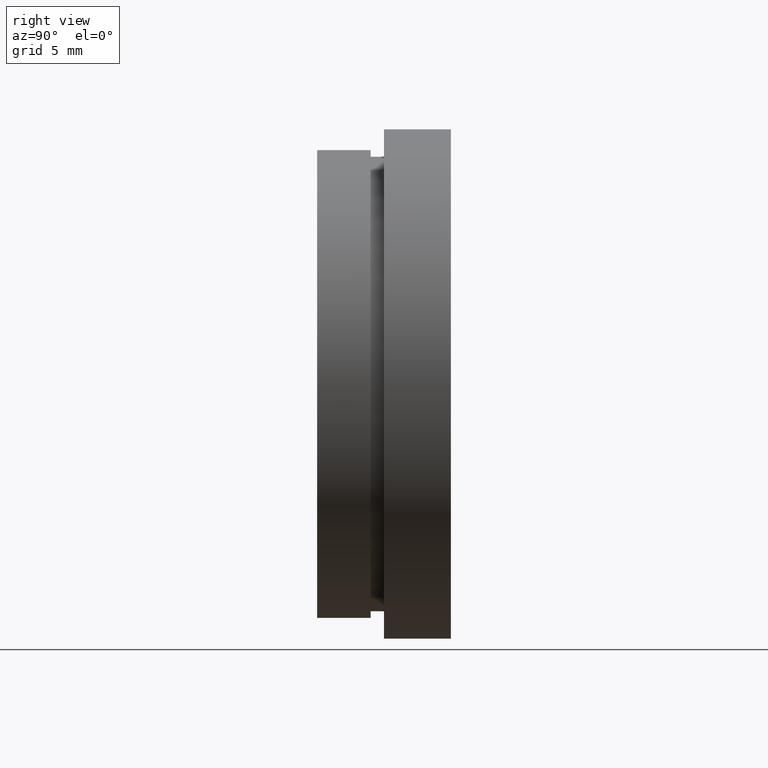
[diagram: clean part render]
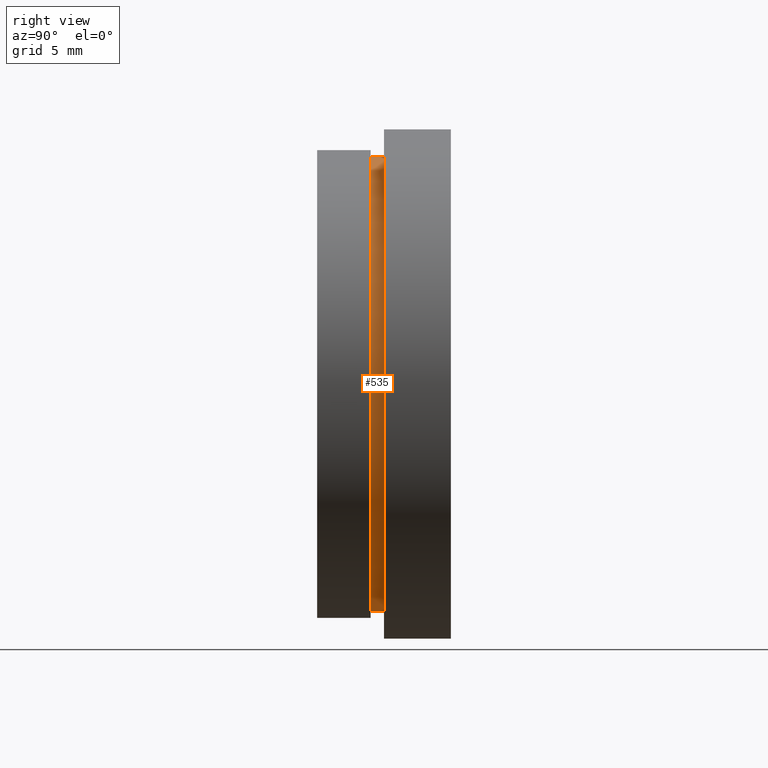
[diagram: same view with one face highlighted and labeled with its STEP entity id]
A machine part, right view. The second image highlights one B-rep face of the part: STEP entity #535.
In plain terms, the highlighted cylindrical surface (partial cylindrical patch) has radius 17 mm, axis along (-0, 1, -0).
Its self-contained STEP definition (entity closure, byte-faithful):
#9 = ORIENTED_EDGE ( 'NONE', *, *, #530, .F. ) ;
#29 = EDGE_CURVE ( 'NONE', #175, #437, #335, .T. ) ;
#57 = AXIS2_PLACEMENT_3D ( 'NONE', #212, #292, #474 ) ;
#67 = CYLINDRICAL_SURFACE ( 'NONE', #447, 17.00000000000000000 ) ;
#98 = VERTEX_POINT ( 'NONE', #430 ) ;
#119 = EDGE_CURVE ( 'NONE', #175, #365, #510, .T. ) ;
#132 = DIRECTION ( 'NONE',  ( -0.0000000000000000000, 1.000000000000000000, -0.0000000000000000000 ) ) ;
#152 = ORIENTED_EDGE ( 'NONE', *, *, #29, .T. ) ;
#163 = FACE_OUTER_BOUND ( 'NONE', #435, .T. ) ;
#166 = DIRECTION ( 'NONE',  ( -0.0000000000000000000, 1.000000000000000000, -0.0000000000000000000 ) ) ;
#172 = ORIENTED_EDGE ( 'NONE', *, *, #119, .F. ) ;
#175 = VERTEX_POINT ( 'NONE', #394 ) ;
#184 = CARTESIAN_POINT ( 'NONE',  ( 0.0000000000000000000, 5.000000000000000900, 0.0000000000000000000 ) ) ;
#194 = CIRCLE ( 'NONE', #468, 17.00000000000000000 ) ;
#199 = CARTESIAN_POINT ( 'NONE',  ( 0.0000000000000000000, 5.000000000000000900, 17.00000000000000000 ) ) ;
#212 = CARTESIAN_POINT ( 'NONE',  ( 0.0000000000000000000, 4.000000000000000000, 0.0000000000000000000 ) ) ;
#219 = DIRECTION ( 'NONE',  ( -0.0000000000000000000, 1.000000000000000000, -0.0000000000000000000 ) ) ;
#242 = CARTESIAN_POINT ( 'NONE',  ( 0.0000000000000000000, 13.74468085106383300, 17.00000000000000000 ) ) ;
#265 = VECTOR ( 'NONE', #582, 1000.000000000000000 ) ;
#292 = DIRECTION ( 'NONE',  ( -0.0000000000000000000, 1.000000000000000000, -0.0000000000000000000 ) ) ;
#311 = DIRECTION ( 'NONE',  ( 0.0000000000000000000, 0.0000000000000000000, 1.000000000000000000 ) ) ;
#335 = CIRCLE ( 'NONE', #57, 17.00000000000000000 ) ;
#365 = VERTEX_POINT ( 'NONE', #199 ) ;
#394 = CARTESIAN_POINT ( 'NONE',  ( 0.0000000000000000000, 4.000000000000000000, 17.00000000000000000 ) ) ;
#422 = CARTESIAN_POINT ( 'NONE',  ( 2.081899558550500300E-015, 4.000000000000000000, -17.00000000000000000 ) ) ;
#430 = CARTESIAN_POINT ( 'NONE',  ( 2.081899558550500300E-015, 5.000000000000000900, -17.00000000000000000 ) ) ;
#435 = EDGE_LOOP ( 'NONE', ( #152, #498, #9, #172 ) ) ;
#436 = LINE ( 'NONE', #572, #265 ) ;
#437 = VERTEX_POINT ( 'NONE', #422 ) ;
#447 = AXIS2_PLACEMENT_3D ( 'NONE', #601, #166, #449 ) ;
#449 = DIRECTION ( 'NONE',  ( 0.0000000000000000000, 0.0000000000000000000, 1.000000000000000000 ) ) ;
#468 = AXIS2_PLACEMENT_3D ( 'NONE', #184, #219, #311 ) ;
#474 = DIRECTION ( 'NONE',  ( 0.0000000000000000000, 0.0000000000000000000, 1.000000000000000000 ) ) ;
#498 = ORIENTED_EDGE ( 'NONE', *, *, #569, .T. ) ;
#510 = LINE ( 'NONE', #242, #511 ) ;
#511 = VECTOR ( 'NONE', #132, 1000.000000000000000 ) ;
#530 = EDGE_CURVE ( 'NONE', #365, #98, #194, .T. ) ;
#535 = ADVANCED_FACE ( 'NONE', ( #163 ), #67, .T. ) ;
#569 = EDGE_CURVE ( 'NONE', #437, #98, #436, .T. ) ;
#572 = CARTESIAN_POINT ( 'NONE',  ( 2.081899558550500300E-015, 13.74468085106383300, -17.00000000000000000 ) ) ;
#582 = DIRECTION ( 'NONE',  ( -0.0000000000000000000, 1.000000000000000000, -0.0000000000000000000 ) ) ;
#601 = CARTESIAN_POINT ( 'NONE',  ( 0.0000000000000000000, 13.74468085106383300, 0.0000000000000000000 ) ) ;